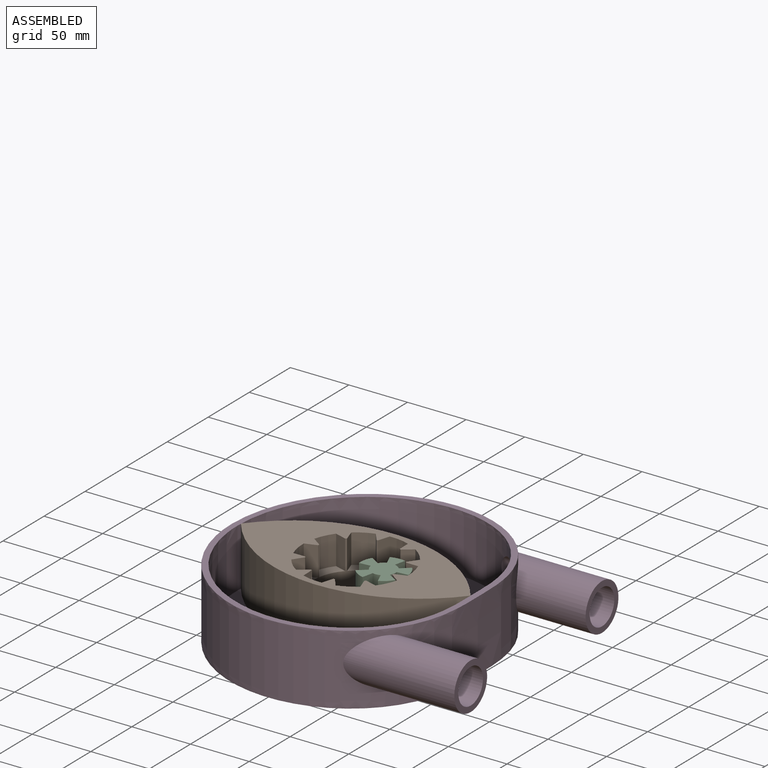
[diagram: assembled view]
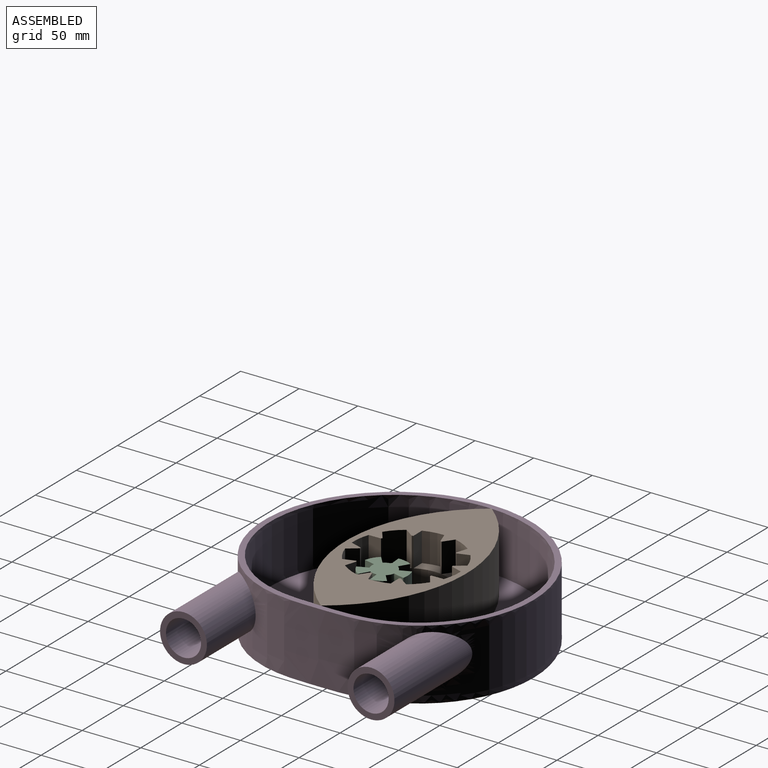
[diagram: assembled view, second angle]
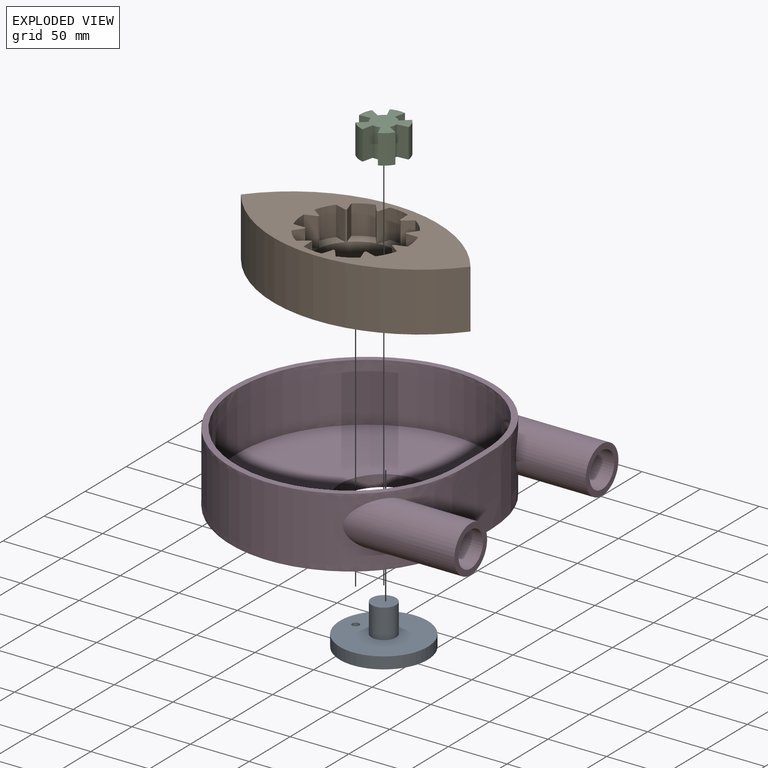
[diagram: exploded view]
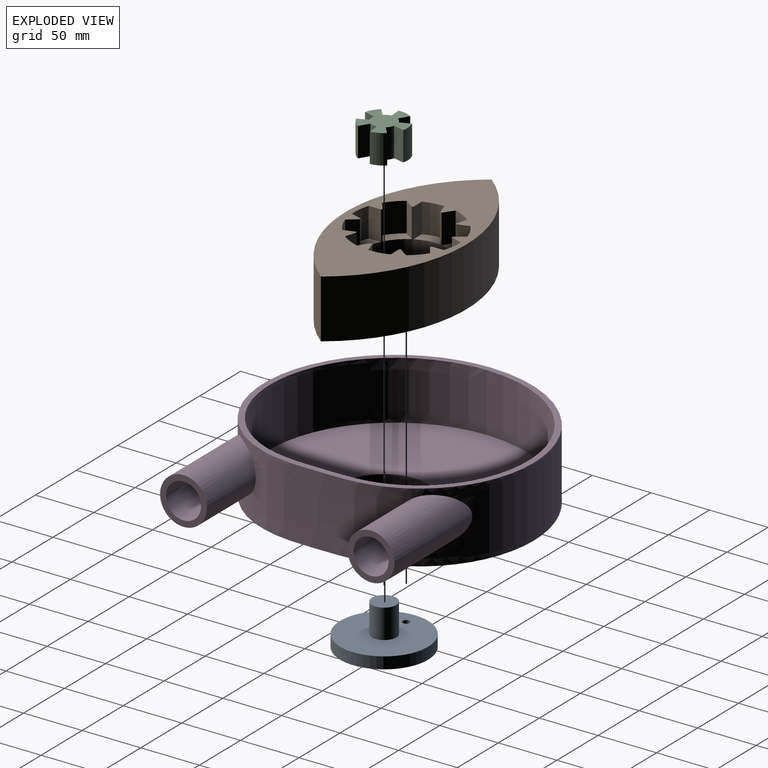
[diagram: exploded view, second angle]
ASSEMBLY  parts=4 mates=3
PART A: 6 faces, bbox 75x75x35 mm
  f0: plane 20.9x20.9mm, normal (0,0,1), area 343.1mm2, adj f4
  f1: plane 75x75mm, normal (0,0,1), area 4045.2mm2, adj f2,f4,f5
  f2: cylinder r=37.5mm len=75mm, axis (0,0,1), area 2356.2mm2, adj f1,f3
  f3: plane 75x75mm, normal (0,0,-1), area 4388.3mm2, adj f2,f5
  f4: cylinder r=10.45mm len=25mm, axis (0,0,-1), area 1641.6mm2, adj f0,f1
  f5: cylinder r=3.07mm len=10mm, axis (0,0,1), area 192.8mm2, adj f1,f3
PART B: 45 faces, bbox 200x100x50 mm
  f0: plane 20.58x12.49mm, normal (0,0,1), area 183.4mm2, adj f14,f16,f17,f18
  f1: plane 20.96x20.42mm, normal (0,0,1), area 183.4mm2, adj f14,f19,f20,f21
  f2: plane 20.69x13.84mm, normal (0,0,1), area 183.4mm2, adj f14,f22,f23,f24
  f3: plane 21.57x17.22mm, normal (0,0,1), area 183.4mm2, adj f14,f25,f26,f27
  f4: plane 21.61x18.29mm, normal (0,0,1), area 183.4mm2, adj f14,f28,f29,f30
  f5: plane 20.58x12.49mm, normal (0,0,1), area 183.4mm2, adj f14,f31,f32,f33
  f6: plane 20.96x20.42mm, normal (0,0,1), area 183.4mm2, adj f14,f34,f35,f36
  f7: plane 20.69x13.84mm, normal (0,0,1), area 183.4mm2, adj f14,f37,f38,f39
  f8: plane 21.57x17.22mm, normal (0,0,1), area 183.4mm2, adj f14,f40,f41,f42
  f9: plane 21.61x18.29mm, normal (0,0,1), area 183.4mm2, adj f14,f15,f43,f44
  f10: plane 200x100mm, normal (0,0,1), area 8195.3mm2, adj f12,f13,f14,f15,f16,f17,f18,f19
  f11: plane 200x100mm, normal (0,0,-1), area 10029.7mm2, adj f12,f13,f14
  f12: cylinder r=125mm len=200mm, axis (0,0,-1), area 11591.2mm2, adj f10,f11,f13
  f13: cylinder r=125mm len=200mm, axis (0,0,-1), area 11591.2mm2, adj f10,f11,f12
  f14: cylinder r=35.45mm len=70.9mm, axis (0,0,-1), area 5882.3mm2, adj f0,f1,f2,f3,f4,f5,f6,f7
  f15: plane 25x8.09mm, normal (0.78,0.63,0), area 259.7mm2, adj f9,f10,f14,f43
  f16: plane 25x10mm, normal (-0.96,0.27,0), area 259.7mm2, adj f0,f10,f14,f17
  f17: cylinder r=45mm len=25mm, axis (0,0,-1), area 436.5mm2, adj f0,f10,f16,f18
  f18: plane 25x10.38mm, normal (1,0.05,0), area 259.7mm2, adj f0,f10,f14,f17
  f19: plane 25x8.17mm, normal (-0.62,0.79,0), area 259.7mm2, adj f1,f10,f14,f20
  f20: cylinder r=45mm len=25mm, axis (0,0,-1), area 436.5mm2, adj f1,f10,f19,f21
  f21: plane 25x8.69mm, normal (0.84,-0.55,0), area 259.7mm2, adj f1,f10,f14,f20
  f22: plane 25x10.38mm, normal (-0.04,1,0), area 259.7mm2, adj f2,f10,f14,f23
  f23: cylinder r=45mm len=25mm, axis (0,0,-1), area 436.5mm2, adj f2,f10,f22,f24
  f24: plane 25x9.71mm, normal (0.36,-0.93,0), area 259.7mm2, adj f2,f10,f14,f23
  f25: plane 25x8.63mm, normal (0.56,0.83,0), area 259.7mm2, adj f3,f10,f14,f26
  f26: cylinder r=45mm len=25mm, axis (0,0,-1), area 436.5mm2, adj f3,f10,f25,f27
  f27: plane 25x10.03mm, normal (-0.26,-0.97,0), area 259.7mm2, adj f3,f10,f14,f26
  f28: plane 25x9.75mm, normal (0.94,0.35,0), area 259.7mm2, adj f4,f10,f14,f29
  f29: cylinder r=45mm len=25mm, axis (0,0,-1), area 436.5mm2, adj f4,f10,f28,f30
  f30: plane 25x8.09mm, normal (-0.78,-0.63,0), area 259.7mm2, adj f4,f10,f14,f29
  f31: plane 25x10mm, normal (0.96,-0.27,0), area 259.7mm2, adj f5,f10,f14,f32
  f32: cylinder r=45mm len=25mm, axis (0,0,-1), area 436.5mm2, adj f5,f10,f31,f33
  f33: plane 25x10.38mm, normal (-1,-0.05,0), area 259.7mm2, adj f5,f10,f14,f32
  f34: plane 25x8.17mm, normal (0.62,-0.79,0), area 259.7mm2, adj f6,f10,f14,f35
  f35: cylinder r=45mm len=25mm, axis (0,0,-1), area 436.5mm2, adj f6,f10,f34,f36
  f36: plane 25x8.69mm, normal (-0.84,0.55,0), area 259.7mm2, adj f6,f10,f14,f35
  f37: plane 25x10.38mm, normal (0.04,-1,0), area 259.7mm2, adj f7,f10,f14,f38
  f38: cylinder r=45mm len=25mm, axis (0,0,-1), area 436.5mm2, adj f7,f10,f37,f39
  f39: plane 25x9.71mm, normal (-0.36,0.93,0), area 259.7mm2, adj f7,f10,f14,f38
  f40: plane 25x8.63mm, normal (-0.56,-0.83,0), area 259.7mm2, adj f8,f10,f14,f41
  f41: cylinder r=45mm len=25mm, axis (0,0,-1), area 436.5mm2, adj f8,f10,f40,f42
  f42: plane 25x10.03mm, normal (0.26,0.97,0), area 259.7mm2, adj f8,f10,f14,f41
  f43: cylinder r=45mm len=25mm, axis (0,0,-1), area 436.5mm2, adj f9,f10,f15,f44
  f44: plane 25x9.75mm, normal (-0.94,-0.35,0), area 259.7mm2, adj f9,f10,f14,f43
PART C: 22 faces, bbox 39.9x39.5x25 mm
  f0: plane 39.92x39.49mm, normal (0,0,1), area 799.9mm2, adj f1,f2,f3,f4,f5,f6,f7,f8
  f1: plane 25x9.51mm, normal (0.09,-1,0), area 238.7mm2, adj f0,f2,f20,f21
  f2: cylinder r=20mm len=25mm, axis (0,0,-1), area 314.2mm2, adj f0,f1,f3,f21
  f3: plane 25x7.21mm, normal (-0.66,0.75,0), area 238.7mm2, adj f0,f2,f4,f21
  f4: cylinder r=10.45mm len=25mm, axis (0,0,-1), area 164.2mm2, adj f0,f3,f5,f21
  f5: plane 25x9.3mm, normal (0.97,-0.22,0), area 238.7mm2, adj f0,f4,f6,f21
  f6: cylinder r=20mm len=25mm, axis (0,0,-1), area 314.2mm2, adj f0,f5,f7,f21
  f7: plane 25x8.79mm, normal (-0.92,-0.39,0), area 238.7mm2, adj f0,f6,f8,f21
  f8: cylinder r=10.45mm len=25mm, axis (0,0,-1), area 164.2mm2, adj f0,f7,f9,f21
  f9: plane 25x8.19mm, normal (0.52,0.86,0), area 238.7mm2, adj f0,f8,f10,f21
  f10: cylinder r=20mm len=25mm, axis (0,0,-1), area 314.2mm2, adj f0,f9,f11,f21
  f11: plane 25x9.51mm, normal (0.09,-1,0), area 238.7mm2, adj f0,f10,f12,f21
  f12: cylinder r=10.45mm len=25mm, axis (0,0,-1), area 164.2mm2, adj f0,f11,f13,f21
  f13: plane 25x7.21mm, normal (-0.66,0.75,0), area 238.7mm2, adj f0,f12,f14,f21
  f14: cylinder r=20mm len=25mm, axis (0,0,-1), area 314.2mm2, adj f0,f13,f15,f21
  f15: plane 25x9.3mm, normal (0.97,-0.22,0), area 238.7mm2, adj f0,f14,f16,f21
  f16: cylinder r=10.45mm len=25mm, axis (0,0,-1), area 164.2mm2, adj f0,f15,f17,f21
  f17: plane 25x8.79mm, normal (-0.92,-0.39,0), area 238.7mm2, adj f0,f16,f18,f21
  f18: cylinder r=20mm len=25mm, axis (0,0,-1), area 314.2mm2, adj f0,f17,f19,f21
  f19: plane 25x8.19mm, normal (0.52,0.86,0), area 238.7mm2, adj f0,f18,f20,f21
  f20: cylinder r=10.45mm len=25mm, axis (0,0,-1), area 164.2mm2, adj f0,f1,f19,f21
  f21: plane 39.92x39.49mm, normal (0,0,-1), area 799.9mm2, adj f1,f2,f3,f4,f5,f6,f7,f8
PART D: 12 faces, bbox 260.1x230.5x60.1 mm
  f0: extruded ~230.09x210mm, area 38647.2mm2, adj f2,f3,f8,f10
  f1: extruded ~220.09x200mm, area 31452.5mm2, adj f3,f4,f6,f7
  f2: plane 230.21x210.01mm, normal (0,0,-1), area 34335.7mm2, adj f0,f5
  f3: plane 230.54x210.12mm, normal (0,0,1), area 3415.4mm2, adj f0,f1
  f4: plane 221.41x200.85mm, normal (0,0,1), area 30921.3mm2, adj f1,f5
  f5: cylinder r=37.5mm len=75mm, axis (0,0,1), area 2356.2mm2, adj f2,f4
  f6: cylinder r=15mm len=96.25mm, axis (1,0,0), area 7556.3mm2, adj f1,f9
  f7: cylinder r=15mm len=96.25mm, axis (1,0,0), area 7556mm2, adj f1,f11
  f8: cylinder r=20mm len=94.79mm, axis (1,0,0), area 9351.9mm2, adj f0,f9
  f9: plane 40x40mm, normal (1,0,0), area 549.8mm2, adj f6,f8
  f10: cylinder r=20mm len=94.79mm, axis (1,0,0), area 9351.5mm2, adj f0,f11
  f11: plane 40x40mm, normal (1,0,0), area 549.8mm2, adj f7,f10
PLACE A rot(axis=(0,0,-1),3.3deg) t=(24.89,0.01,10)mm
PLACE B rot(axis=(0,0,-1),1.6deg) t=(24.92,0.73,10)mm
PLACE C t=(24.89,0.01,10)mm
PLACE D t=(25.06,0,10)mm
MATE revolute B.f17 <-> A.f5  axis (0,0,-1) through (-0.07,1.44,10)mm
MATE revolute C.f18 <-> A.f4  axis (0,0,-1) through (24.89,0.01,35)mm
MATE revolute D.f5 <-> A.f3  axis (0,0,-1) through (25.06,0,0)mm
